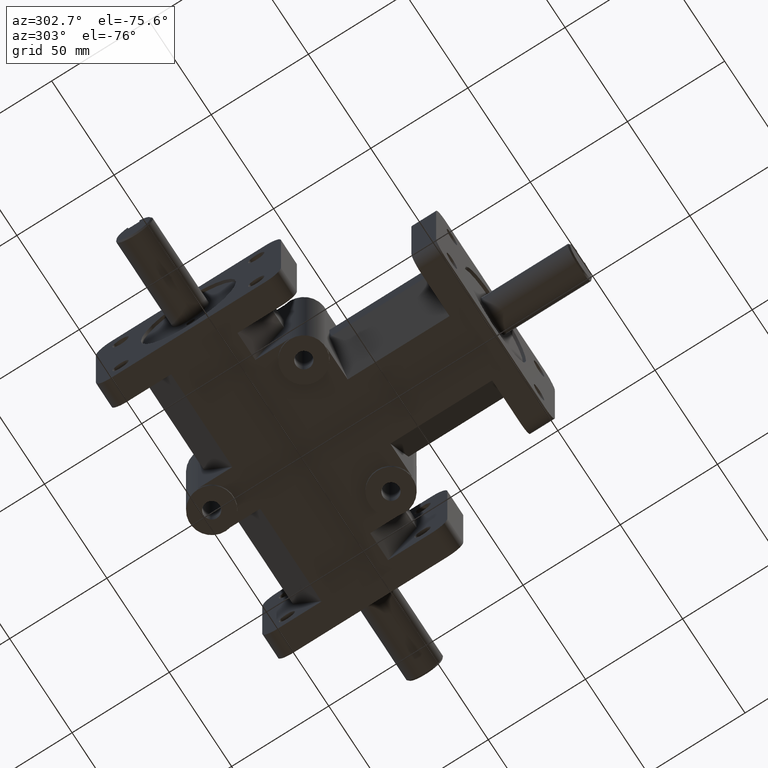
[diagram: clean part render]
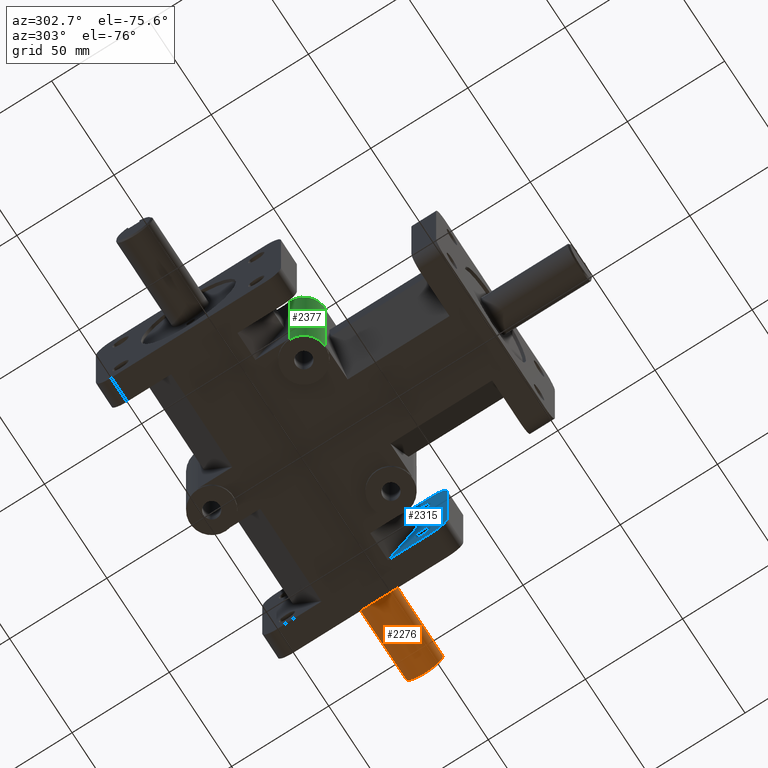
[diagram: same view with three faces highlighted in distinct colors, each labeled with its STEP entity id]
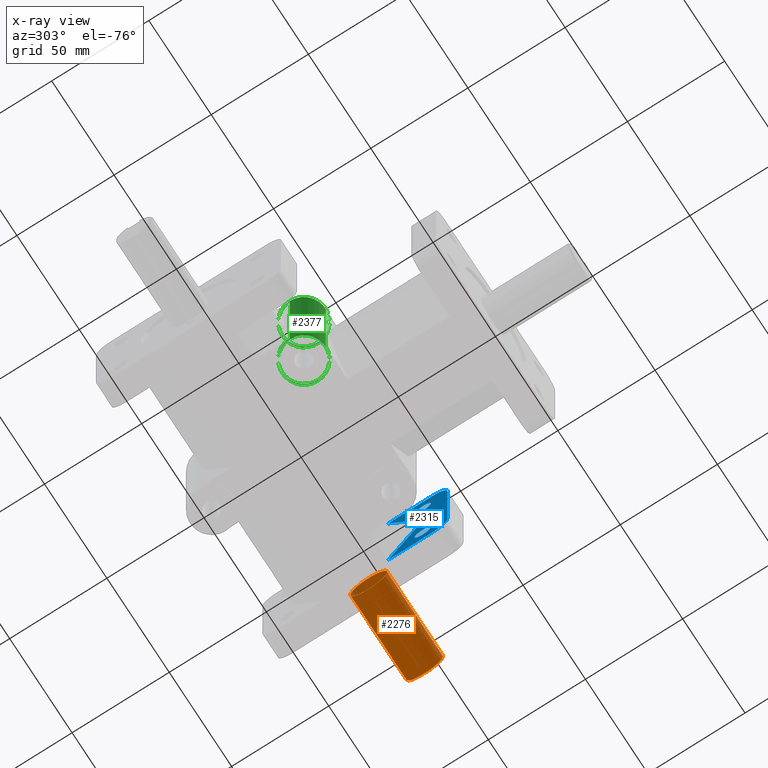
[diagram: x-ray of the same camera — body ghosted, the three highlighted faces saturated]
A machine part, auxiliary view with three faces highlighted in distinct colors.
The next image is the same camera in x-ray (body ghosted, the three faces saturated) — at least one of them is partly hidden behind the body in this view.
Their STEP definitions:

[orange] entity #2276 — the highlighted cylindrical surface (bore or boss wall) has radius 9.5 mm, axis along (1, 0, 0).
#157=FACE_OUTER_BOUND('',#286,.T.);
#286=EDGE_LOOP('',(#1587,#1588,#1589,#1590,#1591,#1592,#1593,#1594));
#455=LINE('',#3363,#677);
#459=LINE('',#3376,#681);
#465=LINE('',#3395,#687);
#677=VECTOR('',#2672,1.);
#681=VECTOR('',#2678,1.);
#687=VECTOR('',#2694,9.5);
#902=CIRCLE('',#2425,9.5);
#903=CIRCLE('',#2427,9.5);
#904=CIRCLE('',#2428,9.5);
#905=CIRCLE('',#2429,9.5);
#1008=VERTEX_POINT('',#3361);
#1009=VERTEX_POINT('',#3362);
#1013=VERTEX_POINT('',#3374);
#1014=VERTEX_POINT('',#3375);
#1018=VERTEX_POINT('',#3392);
#1019=VERTEX_POINT('',#3394);
#1232=EDGE_CURVE('',#1008,#1009,#455,.T.);
#1237=EDGE_CURVE('',#1013,#1014,#459,.T.);
#1244=EDGE_CURVE('',#1014,#1008,#902,.T.);
#1245=EDGE_CURVE('',#1018,#1009,#903,.T.);
#1246=EDGE_CURVE('',#1018,#1019,#465,.T.);
#1247=EDGE_CURVE('',#1019,#1019,#904,.T.);
#1248=EDGE_CURVE('',#1013,#1018,#905,.T.);
#1587=ORIENTED_EDGE('',*,*,#1232,.T.);
#1588=ORIENTED_EDGE('',*,*,#1245,.F.);
#1589=ORIENTED_EDGE('',*,*,#1246,.T.);
#1590=ORIENTED_EDGE('',*,*,#1247,.F.);
#1591=ORIENTED_EDGE('',*,*,#1246,.F.);
#1592=ORIENTED_EDGE('',*,*,#1248,.F.);
#1593=ORIENTED_EDGE('',*,*,#1237,.T.);
#1594=ORIENTED_EDGE('',*,*,#1244,.T.);
#2228=CYLINDRICAL_SURFACE('',#2426,9.5);
#2276=ADVANCED_FACE('',(#157),#2228,.T.);
#2425=AXIS2_PLACEMENT_3D('',#3390,#2688,#2689);
#2426=AXIS2_PLACEMENT_3D('',#3391,#2690,#2691);
#2427=AXIS2_PLACEMENT_3D('',#3393,#2692,#2693);
#2428=AXIS2_PLACEMENT_3D('',#3396,#2695,#2696);
#2429=AXIS2_PLACEMENT_3D('',#3397,#2697,#2698);
#2672=DIRECTION('',(1.,0.,0.));
#2678=DIRECTION('',(-1.,0.,0.));
#2688=DIRECTION('center_axis',(-1.,0.,0.));
#2689=DIRECTION('ref_axis',(0.,1.,0.));
#2690=DIRECTION('center_axis',(1.,0.,0.));
#2691=DIRECTION('ref_axis',(0.,1.,0.));
#2692=DIRECTION('center_axis',(1.,0.,0.));
#2693=DIRECTION('ref_axis',(0.,-1.,0.));
#2694=DIRECTION('',(-1.,0.,0.));
#2695=DIRECTION('center_axis',(-1.,0.,0.));
#2696=DIRECTION('ref_axis',(0.,1.,0.));
#2697=DIRECTION('center_axis',(1.,0.,0.));
#2698=DIRECTION('ref_axis',(0.,-1.,0.));
#3361=CARTESIAN_POINT('',(78.925,114.125,9.01387818865997));
#3362=CARTESIAN_POINT('',(116.263,114.125,9.01387818865997));
#3363=CARTESIAN_POINT('',(94.263,114.125,9.01387818865997));
#3374=CARTESIAN_POINT('',(116.263,108.125,9.01387818865997));
#3375=CARTESIAN_POINT('',(78.925,108.125,9.01387818865997));
#3376=CARTESIAN_POINT('',(94.263,108.125,9.01387818865997));
#3390=CARTESIAN_POINT('Origin',(78.925,111.125,0.));
#3391=CARTESIAN_POINT('Origin',(94.263,111.125,0.));
#3392=CARTESIAN_POINT('',(116.263,101.625,-1.16341445918999E-15));
#3393=CARTESIAN_POINT('Origin',(116.263,111.125,0.));
#3394=CARTESIAN_POINT('',(71.501,101.625,-1.16341445918999E-15));
#3395=CARTESIAN_POINT('',(94.263,101.625,-1.16341445918999E-15));
#3396=CARTESIAN_POINT('Origin',(71.501,111.125,0.));
#3397=CARTESIAN_POINT('Origin',(116.263,111.125,0.));

[blue] entity #2315 — the highlighted planar face has unit normal (-1, 0, 0).
#26=FACE_BOUND('',#337,.T.);
#27=FACE_BOUND('',#338,.T.);
#88=PLANE('',#2517);
#196=FACE_OUTER_BOUND('',#336,.T.);
#336=EDGE_LOOP('',(#1768,#1769,#1770,#1771,#1772,#1773,#1774,#1775));
#337=EDGE_LOOP('',(#1776));
#338=EDGE_LOOP('',(#1777));
#524=LINE('',#3647,#746);
#525=LINE('',#3649,#747);
#526=LINE('',#3651,#748);
#527=LINE('',#3653,#749);
#528=LINE('',#3654,#750);
#529=LINE('',#3655,#751);
#746=VECTOR('',#2933,1.);
#747=VECTOR('',#2934,1.);
#748=VECTOR('',#2935,1.);
#749=VECTOR('',#2936,1.);
#750=VECTOR('',#2937,1.);
#751=VECTOR('',#2938,1.);
#934=CIRCLE('',#2486,7.874);
#936=CIRCLE('',#2489,7.874);
#955=CIRCLE('',#2518,4.15925);
#956=CIRCLE('',#2519,4.15925);
#1066=VERTEX_POINT('',#3544);
#1067=VERTEX_POINT('',#3546);
#1070=VERTEX_POINT('',#3553);
#1071=VERTEX_POINT('',#3555);
#1110=VERTEX_POINT('',#3646);
#1111=VERTEX_POINT('',#3648);
#1112=VERTEX_POINT('',#3650);
#1113=VERTEX_POINT('',#3652);
#1114=VERTEX_POINT('',#3656);
#1115=VERTEX_POINT('',#3658);
#1314=EDGE_CURVE('',#1066,#1067,#934,.T.);
#1318=EDGE_CURVE('',#1070,#1071,#936,.T.);
#1360=EDGE_CURVE('',#1066,#1110,#524,.T.);
#1361=EDGE_CURVE('',#1111,#1110,#525,.F.);
#1362=EDGE_CURVE('',#1111,#1112,#526,.T.);
#1363=EDGE_CURVE('',#1113,#1112,#527,.F.);
#1364=EDGE_CURVE('',#1113,#1071,#528,.T.);
#1365=EDGE_CURVE('',#1067,#1070,#529,.T.);
#1366=EDGE_CURVE('',#1114,#1114,#955,.T.);
#1367=EDGE_CURVE('',#1115,#1115,#956,.T.);
#1768=ORIENTED_EDGE('',*,*,#1314,.F.);
#1769=ORIENTED_EDGE('',*,*,#1360,.T.);
#1770=ORIENTED_EDGE('',*,*,#1361,.F.);
#1771=ORIENTED_EDGE('',*,*,#1362,.T.);
#1772=ORIENTED_EDGE('',*,*,#1363,.F.);
#1773=ORIENTED_EDGE('',*,*,#1364,.T.);
#1774=ORIENTED_EDGE('',*,*,#1318,.F.);
#1775=ORIENTED_EDGE('',*,*,#1365,.F.);
#1776=ORIENTED_EDGE('',*,*,#1366,.T.);
#1777=ORIENTED_EDGE('',*,*,#1367,.T.);
#2315=ADVANCED_FACE('',(#196,#26,#27),#88,.T.);
#2486=AXIS2_PLACEMENT_3D('',#3547,#2844,#2845);
#2489=AXIS2_PLACEMENT_3D('',#3556,#2852,#2853);
#2517=AXIS2_PLACEMENT_3D('',#3645,#2931,#2932);
#2518=AXIS2_PLACEMENT_3D('',#3657,#2939,#2940);
#2519=AXIS2_PLACEMENT_3D('',#3659,#2941,#2942);
#2844=DIRECTION('center_axis',(1.,0.,0.));
#2845=DIRECTION('ref_axis',(0.,-0.707106781186547,0.707106781186548));
#2852=DIRECTION('center_axis',(1.,0.,0.));
#2853=DIRECTION('ref_axis',(0.,-0.707106781186547,-0.707106781186548));
#2931=DIRECTION('center_axis',(-1.,0.,0.));
#2932=DIRECTION('ref_axis',(0.,1.,0.));
#2933=DIRECTION('',(0.,1.,0.));
#2934=DIRECTION('',(0.,-0.499999825156179,-0.866025504730542));
#2935=DIRECTION('',(0.,0.,-1.));
#2936=DIRECTION('',(0.,0.499999825156179,-0.866025504730542));
#2937=DIRECTION('',(0.,-1.,0.));
#2938=DIRECTION('',(0.,0.,-1.));
#2939=DIRECTION('center_axis',(1.,0.,0.));
#2940=DIRECTION('ref_axis',(0.,1.,0.));
#2941=DIRECTION('center_axis',(1.,0.,0.));
#2942=DIRECTION('ref_axis',(0.,1.,0.));
#3544=CARTESIAN_POINT('',(60.325,71.374,31.75));
#3546=CARTESIAN_POINT('',(60.325,63.5,23.876));
#3547=CARTESIAN_POINT('Origin',(60.325,71.374,23.876));
#3553=CARTESIAN_POINT('',(60.325,63.5,-23.876));
#3555=CARTESIAN_POINT('',(60.325,71.374,-31.75));
#3556=CARTESIAN_POINT('Origin',(60.325,71.374,-23.876));
#3645=CARTESIAN_POINT('Origin',(60.325,79.375,0.));
#3646=CARTESIAN_POINT('',(60.325,94.03969,31.75));
#3647=CARTESIAN_POINT('',(60.325,81.0874528726981,31.75));
#3648=CARTESIAN_POINT('',(60.325,79.375,6.35));
#3649=CARTESIAN_POINT('',(60.325,81.6663574919962,10.318749444871));
#3650=CARTESIAN_POINT('',(60.325,79.375,-6.35));
#3651=CARTESIAN_POINT('',(60.325,79.375,0.));
#3652=CARTESIAN_POINT('',(60.325,94.03969,-31.75));
#3653=CARTESIAN_POINT('',(60.325,81.6663574919962,-10.318749444871));
#3654=CARTESIAN_POINT('',(60.325,63.5,-31.75));
#3655=CARTESIAN_POINT('',(60.325,63.5,0.));
#3656=CARTESIAN_POINT('',(60.325,72.04075,-20.6375));
#3657=CARTESIAN_POINT('Origin',(60.325,76.2,-20.6375));
#3658=CARTESIAN_POINT('',(60.325,72.04075,20.6375));
#3659=CARTESIAN_POINT('Origin',(60.325,76.2,20.6375));

[green] entity #2377 — the highlighted cylindrical surface (bore or boss wall) has radius 11.1125 mm, axis along (0, 0, -1).
#258=FACE_OUTER_BOUND('',#422,.T.);
#422=EDGE_LOOP('',(#2126,#2127,#2128,#2129,#2130,#2131,#2132,#2133,#2134,
#2135));
#661=LINE('',#4004,#883);
#662=LINE('',#4006,#884);
#663=LINE('',#4007,#885);
#664=LINE('',#4008,#886);
#883=VECTOR('',#3286,1.);
#884=VECTOR('',#3289,11.1125);
#885=VECTOR('',#3290,1.);
#886=VECTOR('',#3291,11.1125);
#965=CIRCLE('',#2531,11.1125);
#968=CIRCLE('',#2535,11.1125);
#995=CIRCLE('',#2588,11.1125);
#996=CIRCLE('',#2590,11.1125);
#1134=VERTEX_POINT('',#3707);
#1135=VERTEX_POINT('',#3709);
#1148=VERTEX_POINT('',#3741);
#1149=VERTEX_POINT('',#3743);
#1196=VERTEX_POINT('',#3889);
#1197=VERTEX_POINT('',#3892);
#1395=EDGE_CURVE('',#1134,#1135,#965,.T.);
#1414=EDGE_CURVE('',#1148,#1149,#968,.T.);
#1487=EDGE_CURVE('',#1196,#1196,#995,.T.);
#1488=EDGE_CURVE('',#1197,#1197,#996,.T.);
#1544=EDGE_CURVE('',#1148,#1135,#661,.T.);
#1545=EDGE_CURVE('',#1197,#1135,#662,.T.);
#1546=EDGE_CURVE('',#1149,#1134,#663,.T.);
#1547=EDGE_CURVE('',#1148,#1196,#664,.T.);
#2126=ORIENTED_EDGE('',*,*,#1488,.T.);
#2127=ORIENTED_EDGE('',*,*,#1545,.T.);
#2128=ORIENTED_EDGE('',*,*,#1395,.F.);
#2129=ORIENTED_EDGE('',*,*,#1546,.F.);
#2130=ORIENTED_EDGE('',*,*,#1414,.F.);
#2131=ORIENTED_EDGE('',*,*,#1547,.T.);
#2132=ORIENTED_EDGE('',*,*,#1487,.T.);
#2133=ORIENTED_EDGE('',*,*,#1547,.F.);
#2134=ORIENTED_EDGE('',*,*,#1544,.T.);
#2135=ORIENTED_EDGE('',*,*,#1545,.F.);
#2268=CYLINDRICAL_SURFACE('',#2626,11.1125);
#2377=ADVANCED_FACE('',(#258),#2268,.T.);
#2531=AXIS2_PLACEMENT_3D('',#3710,#2984,#2985);
#2535=AXIS2_PLACEMENT_3D('',#3744,#3008,#3009);
#2588=AXIS2_PLACEMENT_3D('',#3890,#3160,#3161);
#2590=AXIS2_PLACEMENT_3D('',#3893,#3164,#3165);
#2626=AXIS2_PLACEMENT_3D('',#4005,#3287,#3288);
#2984=DIRECTION('center_axis',(0.,0.,1.));
#2985=DIRECTION('ref_axis',(1.,0.,0.));
#3008=DIRECTION('center_axis',(0.,0.,-1.));
#3009=DIRECTION('ref_axis',(1.,0.,0.));
#3160=DIRECTION('center_axis',(0.,0.,-1.));
#3161=DIRECTION('ref_axis',(1.,0.,0.));
#3164=DIRECTION('center_axis',(0.,0.,1.));
#3165=DIRECTION('ref_axis',(1.,0.,0.));
#3286=DIRECTION('',(0.,0.,-1.));
#3287=DIRECTION('center_axis',(0.,0.,-1.));
#3288=DIRECTION('ref_axis',(1.,0.,0.));
#3289=DIRECTION('',(0.,0.,1.));
#3290=DIRECTION('',(0.,0.,-1.));
#3291=DIRECTION('',(0.,0.,1.));
#3707=CARTESIAN_POINT('',(-34.925,65.0875,-31.75));
#3709=CARTESIAN_POINT('',(-46.0375,76.2,-31.75));
#3710=CARTESIAN_POINT('Origin',(-34.925,76.2,-31.75));
#3741=CARTESIAN_POINT('',(-46.0375,76.2,31.75));
#3743=CARTESIAN_POINT('',(-34.925,65.0875,31.75));
#3744=CARTESIAN_POINT('Origin',(-34.925,76.2,31.75));
#3889=CARTESIAN_POINT('',(-46.0375,76.2,33.3375));
#3890=CARTESIAN_POINT('Origin',(-34.925,76.2,33.3375));
#3892=CARTESIAN_POINT('',(-46.0375,76.2,-33.3375));
#3893=CARTESIAN_POINT('Origin',(-34.925,76.2,-33.3375));
#4004=CARTESIAN_POINT('',(-46.0375,76.2,0.));
#4005=CARTESIAN_POINT('Origin',(-34.925,76.2,0.));
#4006=CARTESIAN_POINT('',(-46.0375,76.2,0.));
#4007=CARTESIAN_POINT('',(-34.925,65.0875,0.));
#4008=CARTESIAN_POINT('',(-46.0375,76.2,0.));